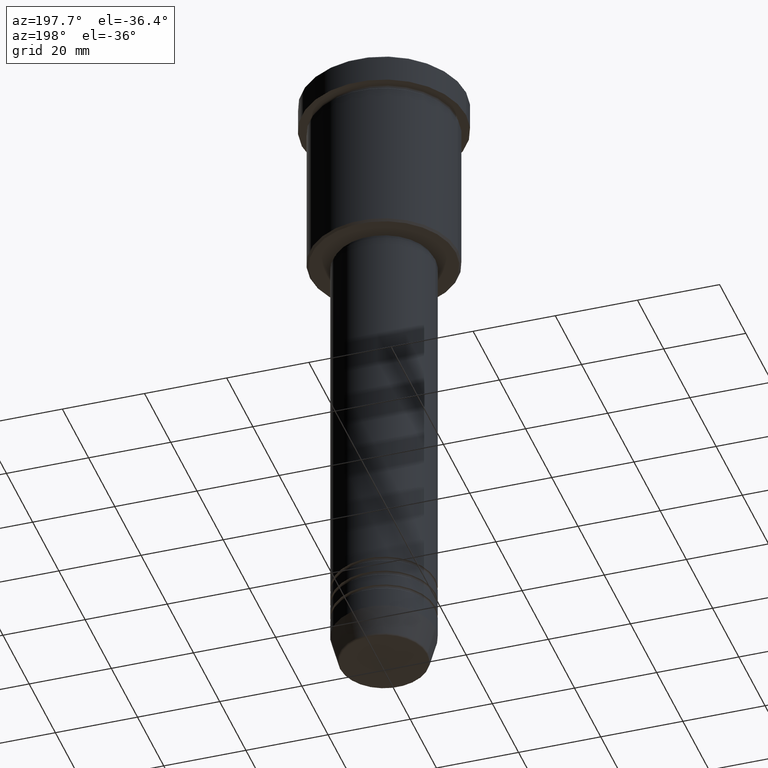
[diagram: clean part render]
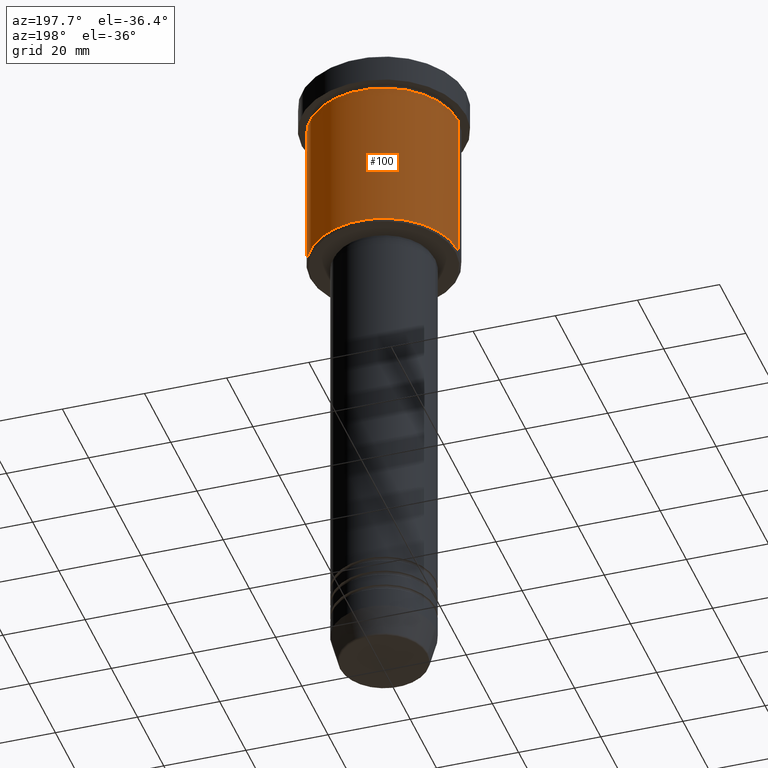
[diagram: same view with one face highlighted and labeled with its STEP entity id]
A machine part, auxiliary view. The second image highlights one B-rep face of the part: STEP entity #100.
In plain terms, the highlighted cylindrical surface (partial cylindrical patch) has radius 18 mm, axis along (-0, -0, 1).
Its self-contained STEP definition (entity closure, byte-faithful):
#14 = CARTESIAN_POINT ( 'NONE',  ( -18.00000000000000000, 2.204364238465235428E-15, 0.000000000000000000 ) ) ;
#57 = CARTESIAN_POINT ( 'NONE',  ( 0.000000000000000000, 0.000000000000000000, 0.000000000000000000 ) ) ;
#61 = CARTESIAN_POINT ( 'NONE',  ( 0.000000000000000000, 0.000000000000000000, -7.999999999999996447 ) ) ;
#67 = EDGE_CURVE ( 'NONE', #644, #560, #906, .T. ) ;
#80 = ORIENTED_EDGE ( 'NONE', *, *, #867, .T. ) ;
#100 = ADVANCED_FACE ( 'NONE', ( #606 ), #865, .T. ) ;
#107 = DIRECTION ( 'NONE',  ( -0.000000000000000000, -0.000000000000000000, 1.000000000000000000 ) ) ;
#216 = VERTEX_POINT ( 'NONE', #850 ) ;
#234 = ORIENTED_EDGE ( 'NONE', *, *, #1177, .F. ) ;
#254 = LINE ( 'NONE', #932, #539 ) ;
#283 = VERTEX_POINT ( 'NONE', #340 ) ;
#316 = DIRECTION ( 'NONE',  ( -0.000000000000000000, -0.000000000000000000, 1.000000000000000000 ) ) ;
#336 = VECTOR ( 'NONE', #107, 1000.000000000000000 ) ;
#340 = CARTESIAN_POINT ( 'NONE',  ( 18.00000000000000000, 0.000000000000000000, -7.999999999999996447 ) ) ;
#366 = CARTESIAN_POINT ( 'NONE',  ( -18.00000000000000000, 2.204364238465235428E-15, -45.50000000000002842 ) ) ;
#539 = VECTOR ( 'NONE', #1148, 1000.000000000000000 ) ;
#560 = VERTEX_POINT ( 'NONE', #980 ) ;
#575 = EDGE_LOOP ( 'NONE', ( #80, #635, #893, #234 ) ) ;
#606 = FACE_OUTER_BOUND ( 'NONE', #575, .T. ) ;
#635 = ORIENTED_EDGE ( 'NONE', *, *, #67, .T. ) ;
#644 = VERTEX_POINT ( 'NONE', #366 ) ;
#662 = AXIS2_PLACEMENT_3D ( 'NONE', #751, #316, #933 ) ;
#700 = CIRCLE ( 'NONE', #662, 18.00000000000000000 ) ;
#705 = DIRECTION ( 'NONE',  ( -0.000000000000000000, -0.000000000000000000, 1.000000000000000000 ) ) ;
#751 = CARTESIAN_POINT ( 'NONE',  ( 0.000000000000000000, 0.000000000000000000, -45.50000000000002842 ) ) ;
#777 = DIRECTION ( 'NONE',  ( -0.000000000000000000, -0.000000000000000000, 1.000000000000000000 ) ) ;
#850 = CARTESIAN_POINT ( 'NONE',  ( 18.00000000000000000, 0.000000000000000000, -45.50000000000002842 ) ) ;
#865 = CYLINDRICAL_SURFACE ( 'NONE', #955, 18.00000000000000000 ) ;
#867 = EDGE_CURVE ( 'NONE', #216, #644, #700, .T. ) ;
#882 = DIRECTION ( 'NONE',  ( 1.000000000000000000, 0.000000000000000000, 0.000000000000000000 ) ) ;
#893 = ORIENTED_EDGE ( 'NONE', *, *, #990, .F. ) ;
#906 = LINE ( 'NONE', #14, #336 ) ;
#932 = CARTESIAN_POINT ( 'NONE',  ( 18.00000000000000000, 0.000000000000000000, 0.000000000000000000 ) ) ;
#933 = DIRECTION ( 'NONE',  ( -1.000000000000000000, 0.000000000000000000, 0.000000000000000000 ) ) ;
#955 = AXIS2_PLACEMENT_3D ( 'NONE', #57, #777, #1153 ) ;
#980 = CARTESIAN_POINT ( 'NONE',  ( -18.00000000000000000, 2.204364238465235428E-15, -7.999999999999996447 ) ) ;
#990 = EDGE_CURVE ( 'NONE', #283, #560, #1003, .T. ) ;
#1003 = CIRCLE ( 'NONE', #1063, 18.00000000000000000 ) ;
#1063 = AXIS2_PLACEMENT_3D ( 'NONE', #61, #705, #882 ) ;
#1148 = DIRECTION ( 'NONE',  ( -0.000000000000000000, -0.000000000000000000, 1.000000000000000000 ) ) ;
#1153 = DIRECTION ( 'NONE',  ( 1.000000000000000000, 0.000000000000000000, 0.000000000000000000 ) ) ;
#1177 = EDGE_CURVE ( 'NONE', #216, #283, #254, .T. ) ;